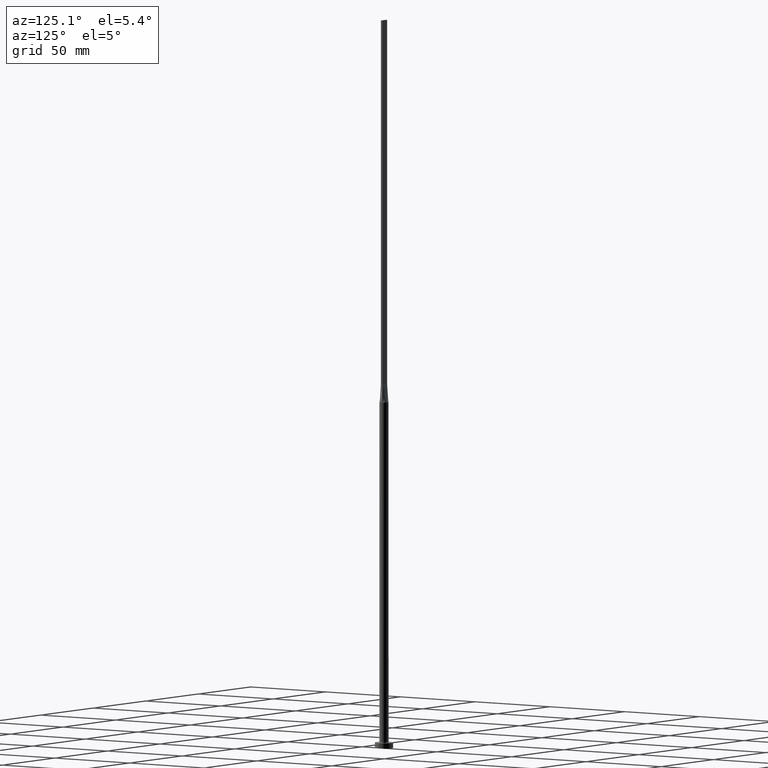
[diagram: clean part render]
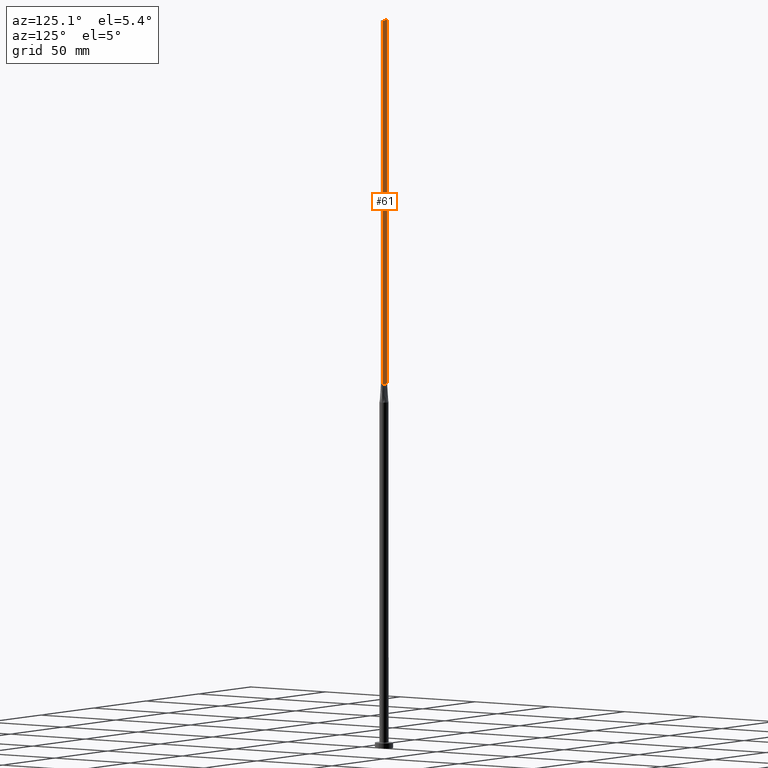
[diagram: same view with one face highlighted and labeled with its STEP entity id]
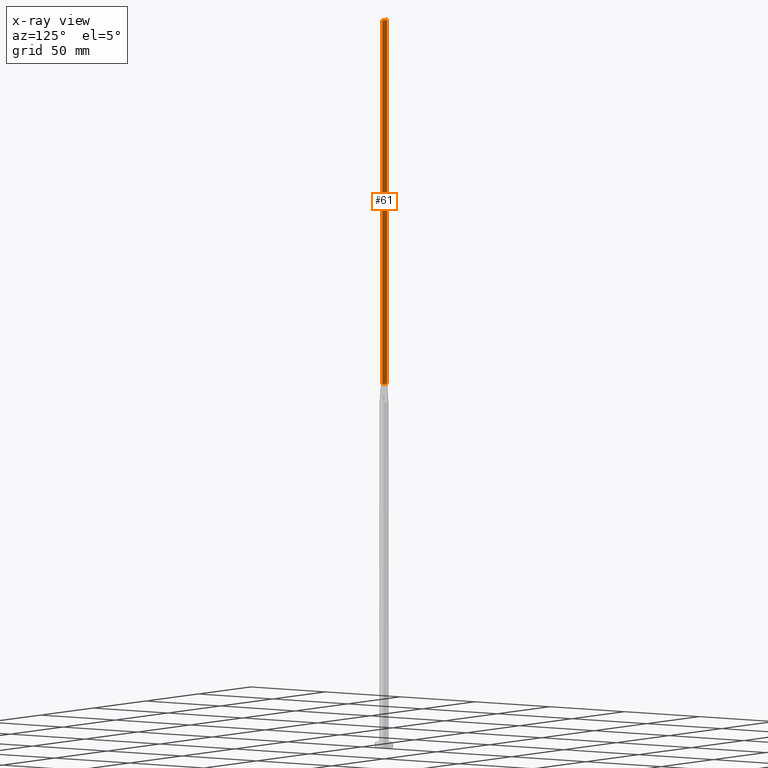
[diagram: x-ray of the same camera — body ghosted, the highlighted face saturated]
A machine part, auxiliary view. The second image highlights one B-rep face of the part: STEP entity #61.
The next image is the same camera in x-ray: the body ghosted, the highlighted face saturated — about 0% of this face is hidden behind the body in this view.
In plain terms, the highlighted planar face has unit normal (0, -1, 0).
Its self-contained STEP definition (entity closure, byte-faithful):
#18 = DIRECTION ( 'NONE',  ( 0.000000000000000000, -1.000000000000000000, 0.000000000000000000 ) ) ;
#22 = DIRECTION ( 'NONE',  ( 0.000000000000000000, -0.000000000000000000, -1.000000000000000000 ) ) ;
#32 = AXIS2_PLACEMENT_3D ( 'NONE', #243, #18, #22 ) ;
#35 = DIRECTION ( 'NONE',  ( -0.000000000000000000, -0.000000000000000000, -1.000000000000000000 ) ) ;
#39 = EDGE_LOOP ( 'NONE', ( #304, #276, #190, #85 ) ) ;
#42 = VECTOR ( 'NONE', #297, 1000.000000000000000 ) ;
#55 = EDGE_CURVE ( 'NONE', #363, #103, #251, .T. ) ;
#61 = ADVANCED_FACE ( 'NONE', ( #375 ), #421, .F. ) ;
#68 = CARTESIAN_POINT ( 'NONE',  ( -2.249999999999999556, 0.5000000000000002220, 200.0000000000000000 ) ) ;
#77 = CARTESIAN_POINT ( 'NONE',  ( -2.249999999999999556, 0.5000000000000002220, 400.0000000000000000 ) ) ;
#85 = ORIENTED_EDGE ( 'NONE', *, *, #166, .T. ) ;
#103 = VERTEX_POINT ( 'NONE', #68 ) ;
#128 = LINE ( 'NONE', #218, #434 ) ;
#136 = VECTOR ( 'NONE', #196, 1000.000000000000000 ) ;
#166 = EDGE_CURVE ( 'NONE', #409, #363, #526, .T. ) ;
#190 = ORIENTED_EDGE ( 'NONE', *, *, #192, .F. ) ;
#191 = VECTOR ( 'NONE', #35, 1000.000000000000000 ) ;
#192 = EDGE_CURVE ( 'NONE', #409, #449, #128, .T. ) ;
#196 = DIRECTION ( 'NONE',  ( -1.000000000000000000, -0.000000000000000000, -0.000000000000000000 ) ) ;
#207 = LINE ( 'NONE', #77, #42 ) ;
#218 = CARTESIAN_POINT ( 'NONE',  ( 2.249999999999999556, 0.5000000000000002220, 400.0000000000000000 ) ) ;
#243 = CARTESIAN_POINT ( 'NONE',  ( 2.249999999999999556, 0.5000000000000002220, 400.0000000000000000 ) ) ;
#251 = LINE ( 'NONE', #511, #136 ) ;
#276 = ORIENTED_EDGE ( 'NONE', *, *, #579, .F. ) ;
#297 = DIRECTION ( 'NONE',  ( -0.000000000000000000, -0.000000000000000000, -1.000000000000000000 ) ) ;
#304 = ORIENTED_EDGE ( 'NONE', *, *, #55, .T. ) ;
#334 = CARTESIAN_POINT ( 'NONE',  ( 2.249999999999999556, 0.5000000000000002220, 400.0000000000000000 ) ) ;
#344 = CARTESIAN_POINT ( 'NONE',  ( 2.249999999999999556, 0.5000000000000002220, 400.0000000000000000 ) ) ;
#363 = VERTEX_POINT ( 'NONE', #415 ) ;
#375 = FACE_OUTER_BOUND ( 'NONE', #39, .T. ) ;
#409 = VERTEX_POINT ( 'NONE', #334 ) ;
#415 = CARTESIAN_POINT ( 'NONE',  ( 2.249999999999999556, 0.5000000000000002220, 200.0000000000000000 ) ) ;
#421 = PLANE ( 'NONE',  #32 ) ;
#434 = VECTOR ( 'NONE', #529, 1000.000000000000000 ) ;
#449 = VERTEX_POINT ( 'NONE', #510 ) ;
#510 = CARTESIAN_POINT ( 'NONE',  ( -2.249999999999999556, 0.5000000000000002220, 400.0000000000000000 ) ) ;
#511 = CARTESIAN_POINT ( 'NONE',  ( -2.249999999999999556, 0.5000000000000002220, 200.0000000000000000 ) ) ;
#526 = LINE ( 'NONE', #344, #191 ) ;
#529 = DIRECTION ( 'NONE',  ( -1.000000000000000000, 0.000000000000000000, 0.000000000000000000 ) ) ;
#579 = EDGE_CURVE ( 'NONE', #449, #103, #207, .T. ) ;